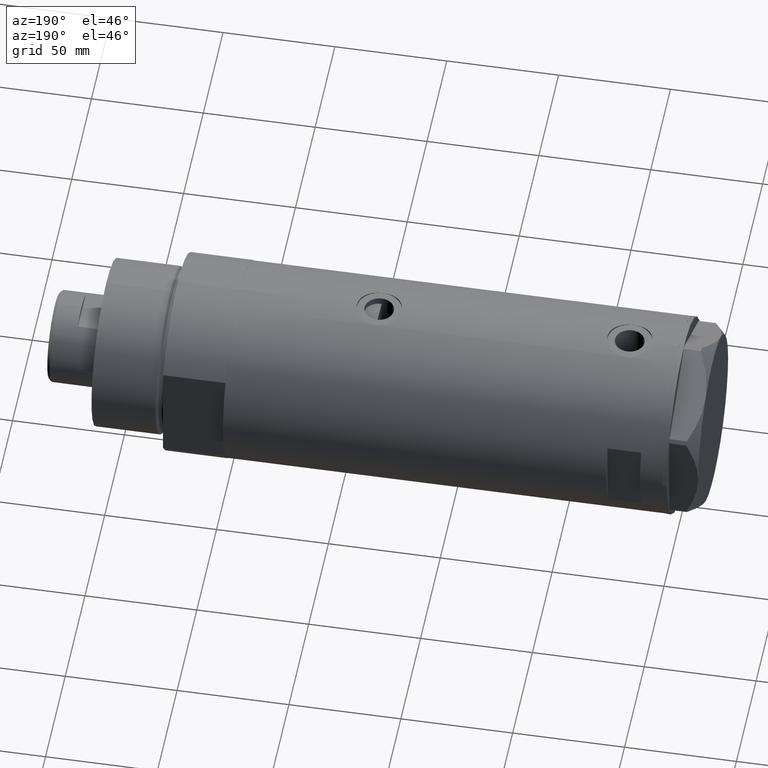
[diagram: clean part render]
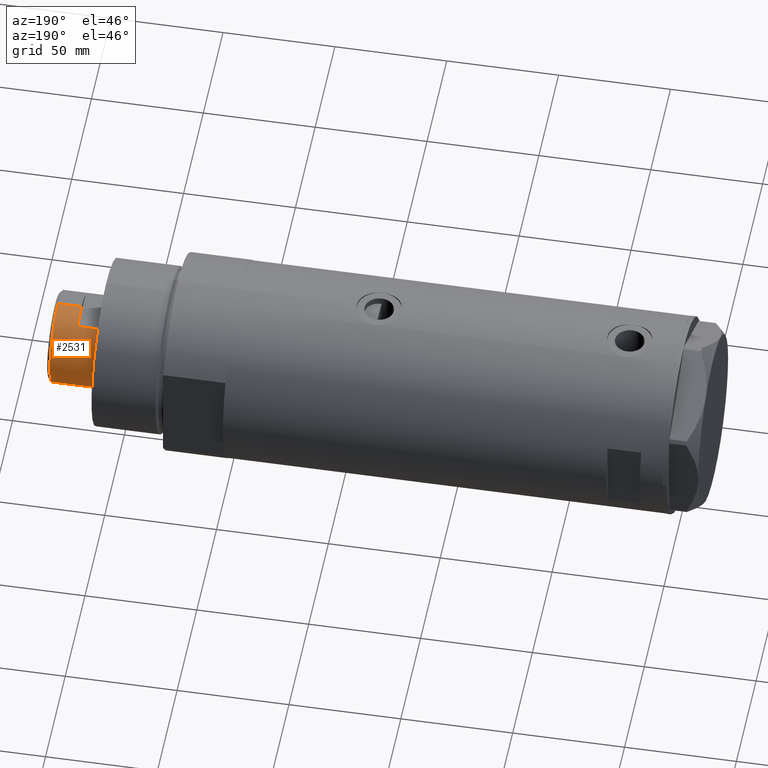
[diagram: same view with one face highlighted and labeled with its STEP entity id]
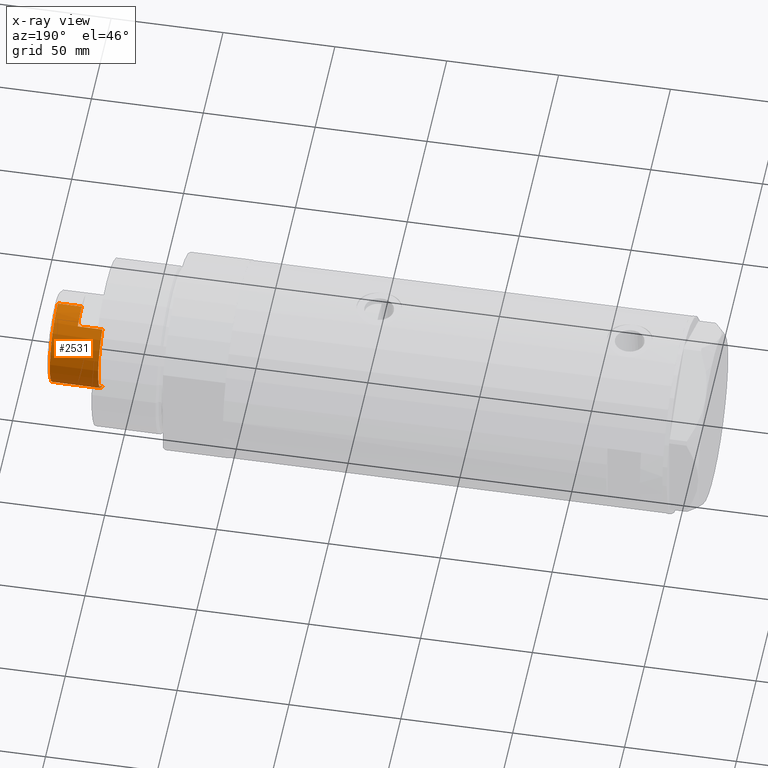
[diagram: x-ray of the same camera — body ghosted, the highlighted face saturated]
A machine part, auxiliary view. The second image highlights one B-rep face of the part: STEP entity #2531.
The next image is the same camera in x-ray: the body ghosted, the highlighted face saturated — about 0% of this face is hidden behind the body in this view.
In plain terms, the highlighted cylindrical surface (partial cylindrical patch) has radius 20.5 mm, axis along (-1, -0, 0).
Its self-contained STEP definition (entity closure, byte-faithful):
#3 = VECTOR ( 'NONE', #1314, 1000.000000000000000 ) ;
#33 = VECTOR ( 'NONE', #4134, 1000.000000000000000 ) ;
#206 = DIRECTION ( 'NONE',  ( 0.000000000000000000, 0.000000000000000000, 1.000000000000000000 ) ) ;
#568 = DIRECTION ( 'NONE',  ( -0.000000000000000000, -0.000000000000000000, -1.000000000000000000 ) ) ;
#602 = LINE ( 'NONE', #2006, #33 ) ;
#660 = DIRECTION ( 'NONE',  ( -0.000000000000000000, -0.000000000000000000, -1.000000000000000000 ) ) ;
#733 = EDGE_CURVE ( 'NONE', #2328, #2453, #3722, .T. ) ;
#845 = CARTESIAN_POINT ( 'NONE',  ( -17.97852886083842705, 9.849999999999965894, 230.3000000000000114 ) ) ;
#881 = CARTESIAN_POINT ( 'NONE',  ( 0.000000000000000000, 0.000000000000000000, 241.3000000000000114 ) ) ;
#989 = CIRCLE ( 'NONE', #3545, 20.50000000000000000 ) ;
#991 = CYLINDRICAL_SURFACE ( 'NONE', #2708, 20.50000000000000355 ) ;
#992 = DIRECTION ( 'NONE',  ( 1.000000000000000000, 0.000000000000000000, 0.000000000000000000 ) ) ;
#1036 = DIRECTION ( 'NONE',  ( 0.000000000000000000, 0.000000000000000000, 1.000000000000000000 ) ) ;
#1090 = CIRCLE ( 'NONE', #2553, 20.49999999999998934 ) ;
#1228 = CARTESIAN_POINT ( 'NONE',  ( 17.97852886083842705, 9.849999999999997868, 230.3000000000000114 ) ) ;
#1273 = ORIENTED_EDGE ( 'NONE', *, *, #4139, .T. ) ;
#1314 = DIRECTION ( 'NONE',  ( -0.000000000000000000, -0.000000000000000000, -1.000000000000000000 ) ) ;
#1357 = ORIENTED_EDGE ( 'NONE', *, *, #3175, .T. ) ;
#1374 = DIRECTION ( 'NONE',  ( 0.000000000000000000, 0.000000000000000000, 1.000000000000000000 ) ) ;
#1410 = EDGE_CURVE ( 'NONE', #2134, #3341, #3355, .T. ) ;
#1507 = EDGE_LOOP ( 'NONE', ( #3007, #2989, #1357, #1273, #2329, #2588, #1733, #4430 ) ) ;
#1590 = CARTESIAN_POINT ( 'NONE',  ( -17.97852886083842705, 9.849999999999997868, 241.3000000000000114 ) ) ;
#1658 = CARTESIAN_POINT ( 'NONE',  ( 0.000000000000000000, 0.000000000000000000, 230.3000000000000114 ) ) ;
#1666 = CARTESIAN_POINT ( 'NONE',  ( -20.50000000000000355, 0.000000000000000000, 251.9000000000001194 ) ) ;
#1683 = CARTESIAN_POINT ( 'NONE',  ( 0.000000000000000000, 0.000000000000000000, 241.3000000000000114 ) ) ;
#1731 = EDGE_CURVE ( 'NONE', #2134, #2453, #989, .T. ) ;
#1733 = ORIENTED_EDGE ( 'NONE', *, *, #1731, .T. ) ;
#2006 = CARTESIAN_POINT ( 'NONE',  ( 17.97852886083842705, 9.849999999999997868, 241.3000000000000114 ) ) ;
#2035 = CARTESIAN_POINT ( 'NONE',  ( 20.50000000000000000, 2.510525938252074481E-15, 241.3000000000000114 ) ) ;
#2040 = FACE_OUTER_BOUND ( 'NONE', #1507, .T. ) ;
#2073 = VECTOR ( 'NONE', #568, 1000.000000000000000 ) ;
#2134 = VERTEX_POINT ( 'NONE', #1590 ) ;
#2291 = EDGE_CURVE ( 'NONE', #4088, #3585, #4416, .T. ) ;
#2328 = VERTEX_POINT ( 'NONE', #1666 ) ;
#2329 = ORIENTED_EDGE ( 'NONE', *, *, #3637, .T. ) ;
#2351 = CARTESIAN_POINT ( 'NONE',  ( 17.97852886083842705, 9.849999999999997868, 241.3000000000000114 ) ) ;
#2434 = DIRECTION ( 'NONE',  ( 1.000000000000000000, 0.000000000000000000, 0.000000000000000000 ) ) ;
#2453 = VERTEX_POINT ( 'NONE', #2972 ) ;
#2531 = ADVANCED_FACE ( 'NONE', ( #2040 ), #991, .T. ) ;
#2553 = AXIS2_PLACEMENT_3D ( 'NONE', #1658, #1036, #2434 ) ;
#2588 = ORIENTED_EDGE ( 'NONE', *, *, #1410, .F. ) ;
#2639 = DIRECTION ( 'NONE',  ( 1.000000000000000000, 0.000000000000000000, 0.000000000000000000 ) ) ;
#2657 = DIRECTION ( 'NONE',  ( 1.000000000000000000, 0.000000000000000000, 0.000000000000000000 ) ) ;
#2708 = AXIS2_PLACEMENT_3D ( 'NONE', #1683, #660, #4432 ) ;
#2753 = VERTEX_POINT ( 'NONE', #2351 ) ;
#2851 = AXIS2_PLACEMENT_3D ( 'NONE', #3822, #1374, #992 ) ;
#2972 = CARTESIAN_POINT ( 'NONE',  ( -20.50000000000000000, 0.000000000000000000, 241.3000000000000114 ) ) ;
#2989 = ORIENTED_EDGE ( 'NONE', *, *, #2291, .T. ) ;
#3007 = ORIENTED_EDGE ( 'NONE', *, *, #4521, .T. ) ;
#3074 = CARTESIAN_POINT ( 'NONE',  ( 20.50000000000000355, 2.510525938252074481E-15, 241.3000000000000114 ) ) ;
#3158 = CIRCLE ( 'NONE', #3446, 20.50000000000000355 ) ;
#3175 = EDGE_CURVE ( 'NONE', #3585, #2753, #3926, .T. ) ;
#3308 = CARTESIAN_POINT ( 'NONE',  ( 20.50000000000000355, 2.510525938252074481E-15, 251.9000000000001194 ) ) ;
#3341 = VERTEX_POINT ( 'NONE', #845 ) ;
#3354 = VERTEX_POINT ( 'NONE', #1228 ) ;
#3355 = LINE ( 'NONE', #3401, #3688 ) ;
#3392 = CARTESIAN_POINT ( 'NONE',  ( -20.50000000000000355, 0.000000000000000000, 241.3000000000000114 ) ) ;
#3401 = CARTESIAN_POINT ( 'NONE',  ( -17.97852886083842705, 9.849999999999997868, 241.3000000000000114 ) ) ;
#3446 = AXIS2_PLACEMENT_3D ( 'NONE', #4052, #4345, #2657 ) ;
#3545 = AXIS2_PLACEMENT_3D ( 'NONE', #881, #206, #2639 ) ;
#3585 = VERTEX_POINT ( 'NONE', #2035 ) ;
#3637 = EDGE_CURVE ( 'NONE', #3354, #3341, #1090, .T. ) ;
#3688 = VECTOR ( 'NONE', #4336, 1000.000000000000000 ) ;
#3722 = LINE ( 'NONE', #3392, #2073 ) ;
#3822 = CARTESIAN_POINT ( 'NONE',  ( 0.000000000000000000, 0.000000000000000000, 241.3000000000000114 ) ) ;
#3926 = CIRCLE ( 'NONE', #2851, 20.50000000000000000 ) ;
#4052 = CARTESIAN_POINT ( 'NONE',  ( 0.000000000000000000, 0.000000000000000000, 251.9000000000001194 ) ) ;
#4088 = VERTEX_POINT ( 'NONE', #3308 ) ;
#4134 = DIRECTION ( 'NONE',  ( -0.000000000000000000, -0.000000000000000000, -1.000000000000000000 ) ) ;
#4139 = EDGE_CURVE ( 'NONE', #2753, #3354, #602, .T. ) ;
#4336 = DIRECTION ( 'NONE',  ( -0.000000000000000000, -0.000000000000000000, -1.000000000000000000 ) ) ;
#4345 = DIRECTION ( 'NONE',  ( 0.000000000000000000, 0.000000000000000000, -1.000000000000000000 ) ) ;
#4416 = LINE ( 'NONE', #3074, #3 ) ;
#4430 = ORIENTED_EDGE ( 'NONE', *, *, #733, .F. ) ;
#4432 = DIRECTION ( 'NONE',  ( -1.000000000000000000, 0.000000000000000000, 0.000000000000000000 ) ) ;
#4521 = EDGE_CURVE ( 'NONE', #2328, #4088, #3158, .T. ) ;